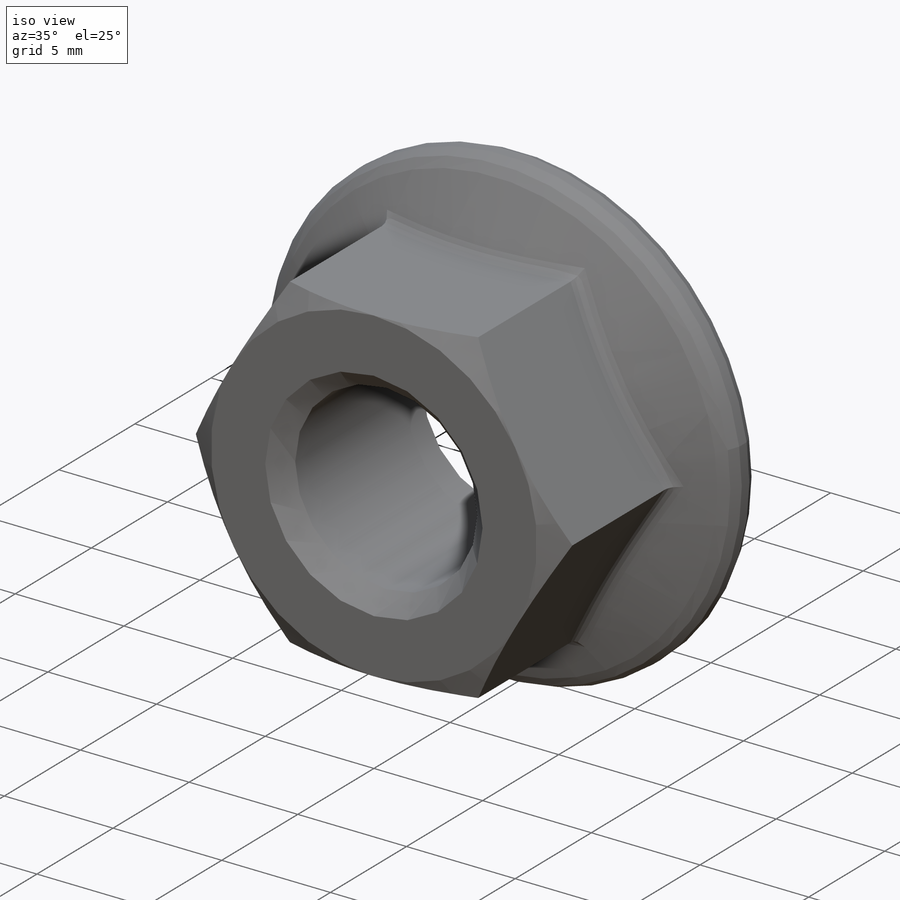
[diagram: iso view]
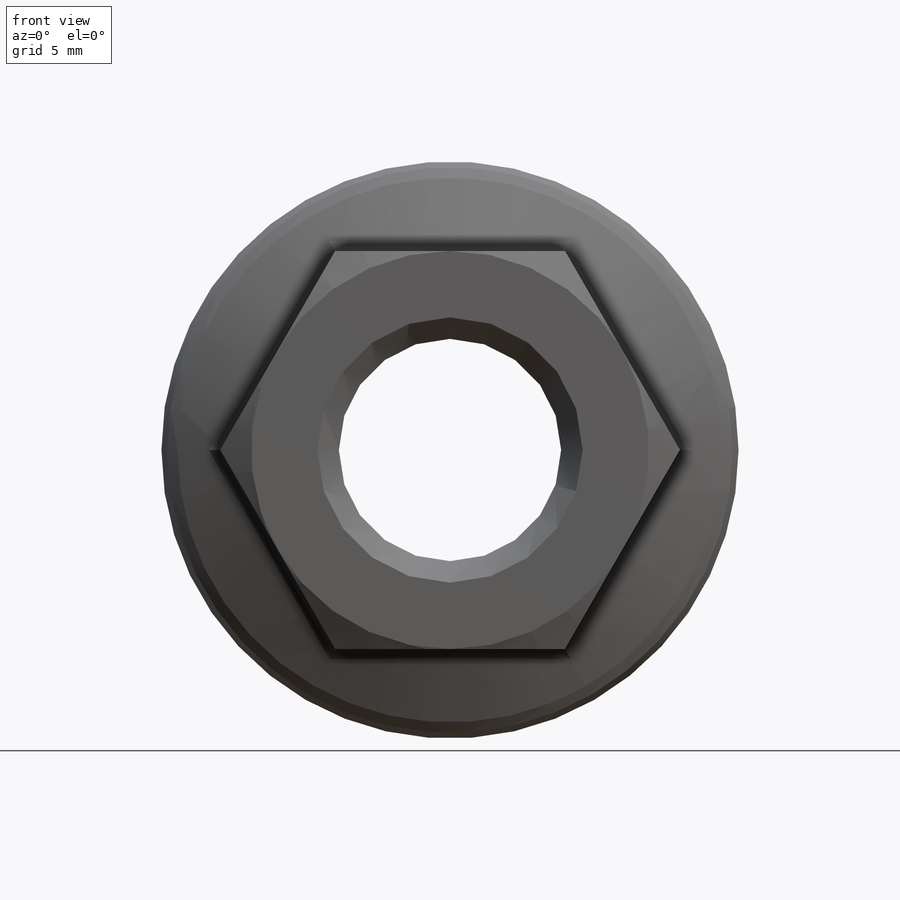
[diagram: front view]
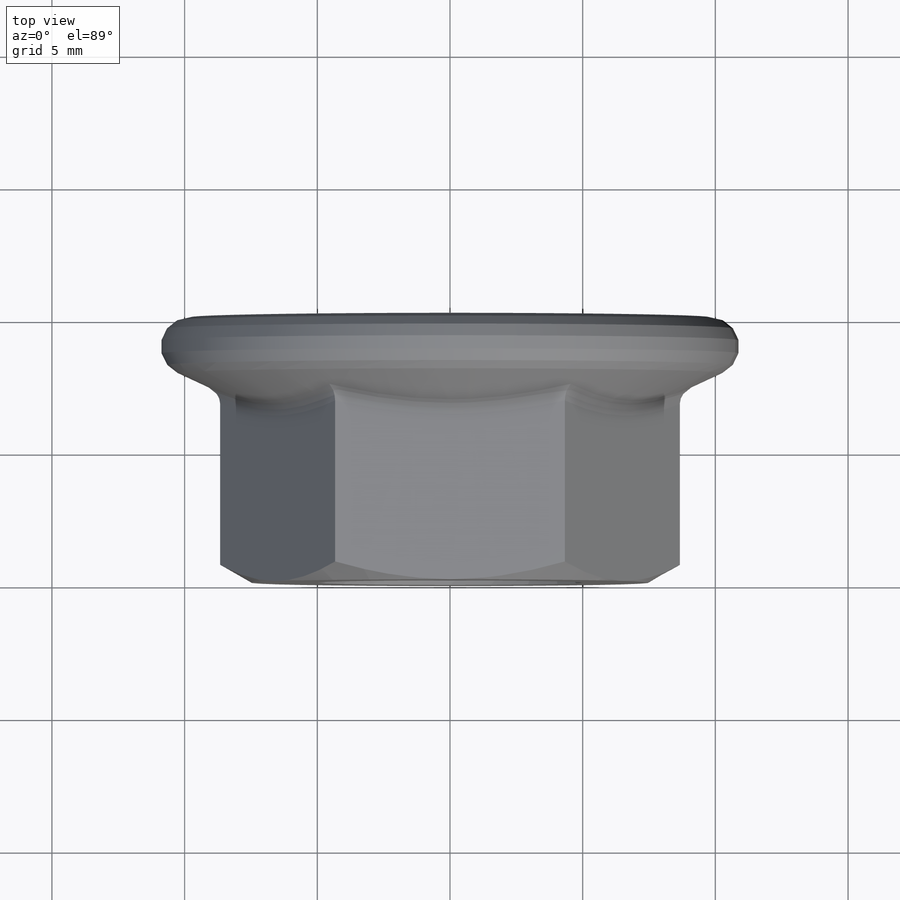
[diagram: top view]
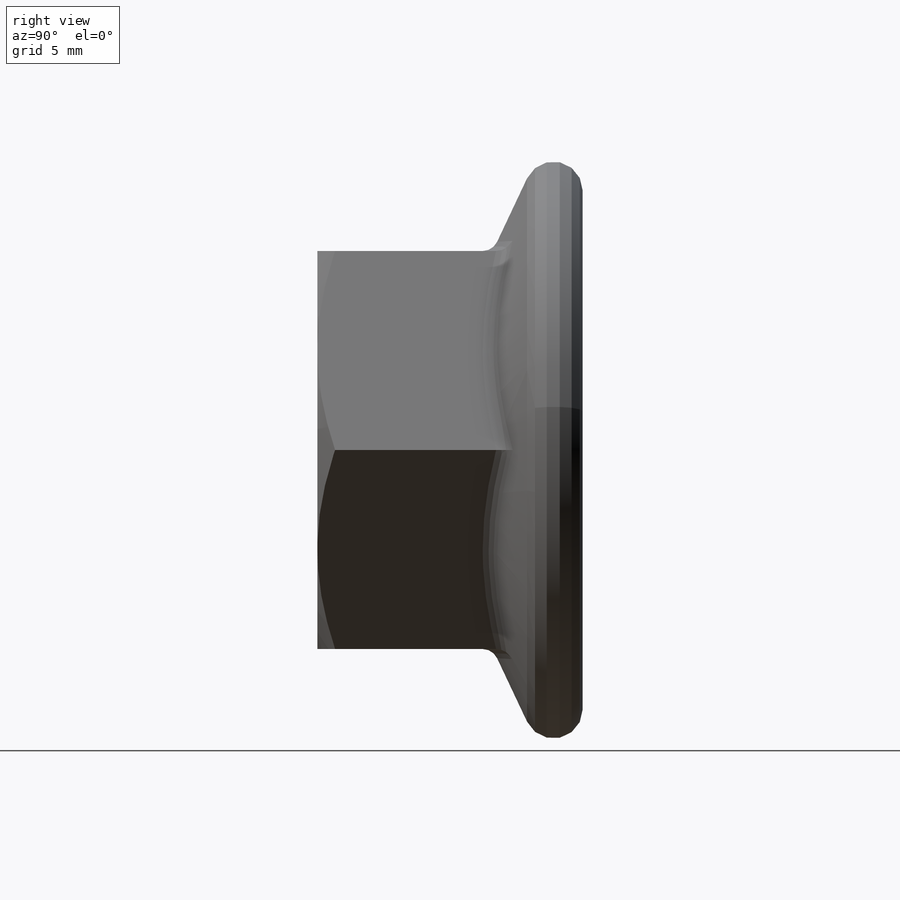
[diagram: right view]
SOLIDWORKS PART (.sldprt)
format: sldprt  version: not decoded by parser v0  size: 483,328 bytes
history: native  units: mm
features: sketch x5, cut_revolve x3, material x1, extrude x1, thread x1, revolve x1, fillet x1, pattern_linear x1 (+12 scaffold rows collapsed)
feature tree (26):
  scaffold x12  (default folders/planes/origin — collapsed)
  material  "材质 <未指定>"
  sketch  "Sketch1"  dims[c1.D2=~16.06375mm c1.s=15.0mm c2.D2=~6.968125mm]
  extrude  "BaseNut"  [1 undecoded]
  thread  "ThreadCosmetic1"  Diameter=10mm m=10mm  [1 undecoded]
  sketch  "Sketch3"  dims[c1.D1=~2.398195mm c2.D1=30.0deg c2.sq=15.0mm]
  cut_revolve  "Double-Chamfer"  Angle=360deg
  sketch  "Sketch4"  dims[c1.D2=3.0mm c1.D3=3.0mm c2.D2=~1.741682mm c2.m1=20.0mm c2.dc=42.8mm c2.dw=19.6mm c2.D4=~4.127355mm c3.D4=65.0deg c3.c=3.0mm c3.dc=21.8mm c3.D1=~12.206445mm c4.D1=65.0deg c4.D4=65.0deg c4.m1=10.0mm c4.D2=20.0mm c5.D1=~12.206445mm c6.D1=115.0deg c7.D1=~21.569227mm c7.&=25.0deg]
  revolve  "Flange"  Angle=360deg
  fillet  "FlangeFillet"  Radius=0.6mm r=0.6mm
  sketch  "Sketch5"  dims[c1.da=10.0mm c1.D2=~0.744528mm c2.D2=45.0deg]
  cut_revolve  "Hole"  Angle=360deg
  sketch  "Sketch6"  dims[D1=0.812mm D2=8.376mm]
  cut_revolve  "Cut-Revolve10"  Angle=360deg
  pattern_linear  "LPattern10"  Count1=10 Count2=1 Spacing1=0.9744mm Spacing2=50mm
decode coverage: 12 of 13 modeling features carry decoded parameters
note: ~ marks probable driven/reference dimensions
note: 2 parameter values undecoded
note: suppression state not decoded; provenance and decode notes live in map.json
